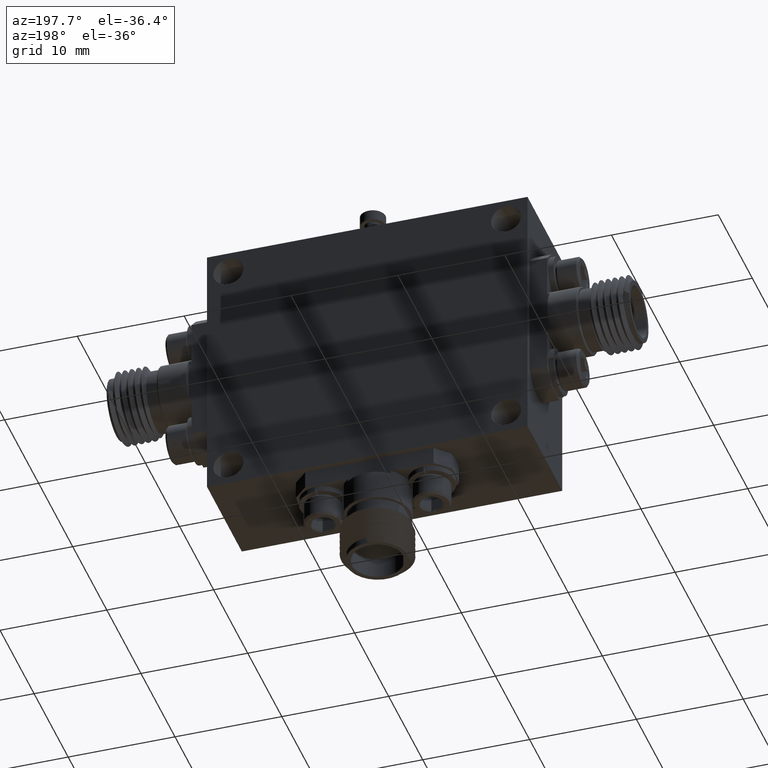
[diagram: clean part render]
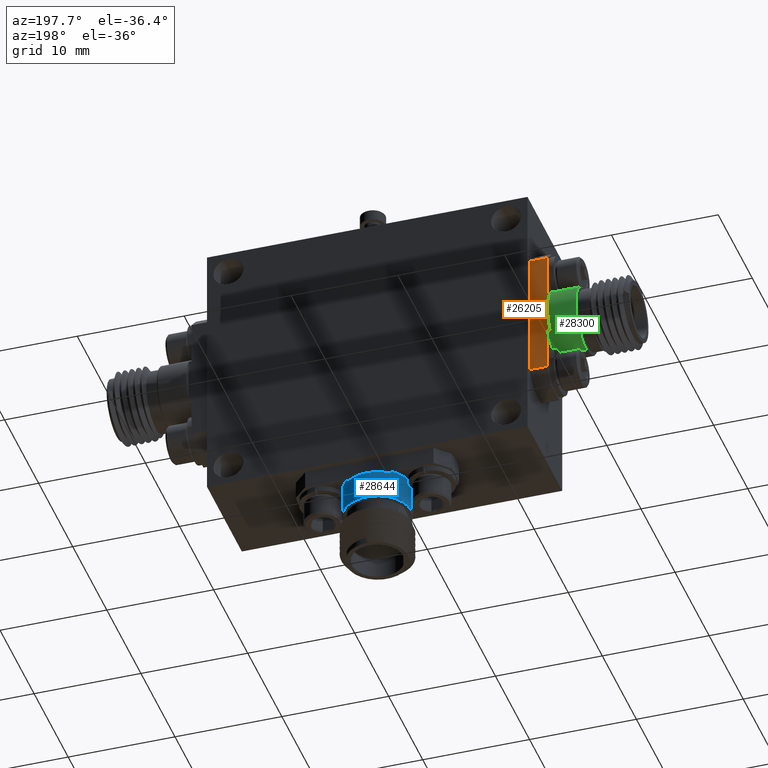
[diagram: same view with three faces highlighted in distinct colors, each labeled with its STEP entity id]
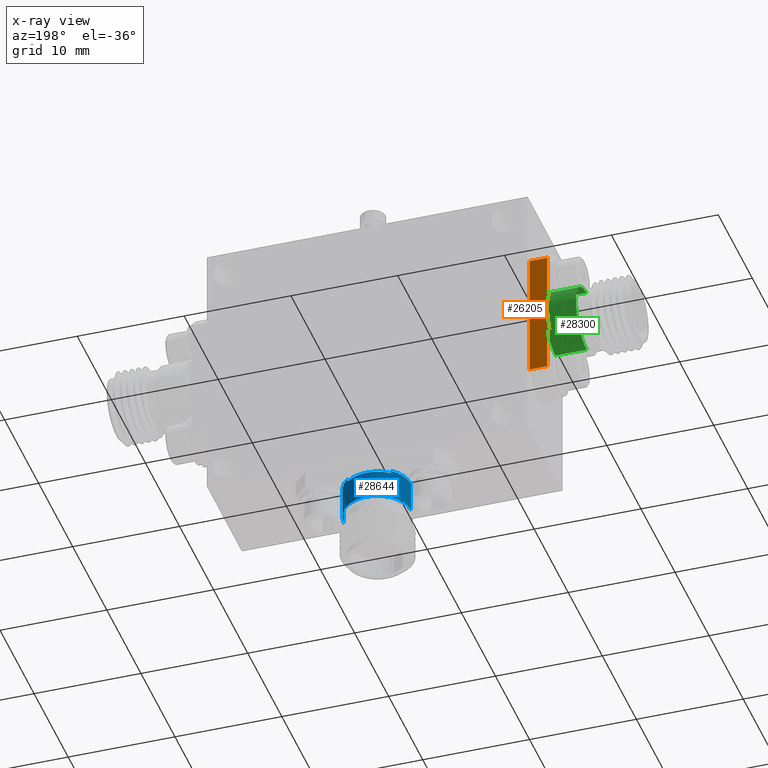
[diagram: x-ray of the same camera — body ghosted, the three highlighted faces saturated]
A machine part, auxiliary view with three faces highlighted in distinct colors.
The next image is the same camera in x-ray (body ghosted, the three faces saturated) — at least one of them is partly hidden behind the body in this view.
Their STEP definitions:

[orange] entity #26205 — the highlighted planar face has unit normal (0, -1, 0).
#391 = CARTESIAN_POINT ( 'NONE',  ( -0.06890135264411048600, 0.8207667375718606900, 0.8853301636433635900 ) ) ;
#2095 = ORIENTED_EDGE ( 'NONE', *, *, #9549, .F. ) ;
#2484 = DIRECTION ( 'NONE',  ( -6.425306481098355200E-017, 1.113111725038923300E-016, 1.000000000000000000 ) ) ;
#4069 = CARTESIAN_POINT ( 'NONE',  ( -0.06890135264411020900, 0.8207667375718606900, 0.7259438405161892100 ) ) ;
#5368 = DIRECTION ( 'NONE',  ( -1.000000000000000000, 7.205886103679894100E-017, 1.577915401140480500E-016 ) ) ;
#6316 = EDGE_CURVE ( 'NONE', #17015, #32960, #31384, .T. ) ;
#7458 = CARTESIAN_POINT ( 'NONE',  ( -0.05890135264411031100, 0.8207667375718608000, 1.042124349095312500 ) ) ;
#7687 = CARTESIAN_POINT ( 'NONE',  ( -0.05890135264411031800, 0.8207667375718606900, 0.7259438405161892100 ) ) ;
#7938 = VECTOR ( 'NONE', #31704, 39.37007874015748100 ) ;
#7959 = CARTESIAN_POINT ( 'NONE',  ( 0.006098647355889683600, 0.8207667375718608000, 1.042124349095312300 ) ) ;
#7998 = CARTESIAN_POINT ( 'NONE',  ( -0.06890135264411020900, 0.8207667375718606900, 0.7259438405161892100 ) ) ;
#8262 = ORIENTED_EDGE ( 'NONE', *, *, #6316, .F. ) ;
#8837 = LINE ( 'NONE', #7458, #23916 ) ;
#9010 = CARTESIAN_POINT ( 'NONE',  ( -0.05890135264411031800, 0.8207667375718606900, 0.8853301636433635900 ) ) ;
#9127 = EDGE_CURVE ( 'NONE', #27603, #9186, #8837, .T. ) ;
#9186 = VERTEX_POINT ( 'NONE', #7959 ) ;
#9334 = VERTEX_POINT ( 'NONE', #30579 ) ;
#9511 = CARTESIAN_POINT ( 'NONE',  ( -0.05890135264411032500, 0.8207667375718606900, 0.5691496550642404200 ) ) ;
#9549 = EDGE_CURVE ( 'NONE', #9334, #17015, #23448, .T. ) ;
#9585 = DIRECTION ( 'NONE',  ( 6.425306481098354000E-017, -1.113111725038923500E-016, -1.000000000000000000 ) ) ;
#10239 = ORIENTED_EDGE ( 'NONE', *, *, #13671, .F. ) ;
#10526 = CARTESIAN_POINT ( 'NONE',  ( 0.006098647355889660200, 0.8207667375718608000, 0.5316388269033713900 ) ) ;
#10949 = EDGE_LOOP ( 'NONE', ( #14933, #32908, #10239, #8262, #2095, #32361, #35754, #16124 ) ) ;
#11012 = VERTEX_POINT ( 'NONE', #9511 ) ;
#11405 = VECTOR ( 'NONE', #5368, 39.37007874015748100 ) ;
#11657 = VERTEX_POINT ( 'NONE', #9010 ) ;
#13671 = EDGE_CURVE ( 'NONE', #32960, #11012, #35167, .T. ) ;
#14105 = PLANE ( 'NONE',  #28135 ) ;
#14933 = ORIENTED_EDGE ( 'NONE', *, *, #15136, .T. ) ;
#15025 = VERTEX_POINT ( 'NONE', #18932 ) ;
#15136 = EDGE_CURVE ( 'NONE', #9186, #15025, #32780, .T. ) ;
#16124 = ORIENTED_EDGE ( 'NONE', *, *, #9127, .T. ) ;
#16238 = CARTESIAN_POINT ( 'NONE',  ( -0.05890135264411031100, 0.8207667375718608000, 1.042124349095312500 ) ) ;
#16773 = DIRECTION ( 'NONE',  ( 2.161765831103969000E-016, -1.000000000000000000, 1.113111725038923500E-016 ) ) ;
#16837 = VECTOR ( 'NONE', #9585, 39.37007874015748100 ) ;
#17015 = VERTEX_POINT ( 'NONE', #35700 ) ;
#17447 = CARTESIAN_POINT ( 'NONE',  ( -0.05890135264411033900, 0.8207667375718608000, 0.5316388269033710500 ) ) ;
#18932 = CARTESIAN_POINT ( 'NONE',  ( 0.006098647355889661100, 0.8207667375718606900, 0.5691496550642407600 ) ) ;
#19056 = DIRECTION ( 'NONE',  ( 6.425306481098354000E-017, -1.113111725038923500E-016, -1.000000000000000000 ) ) ;
#20066 = LINE ( 'NONE', #28844, #11405 ) ;
#23448 = LINE ( 'NONE', #7998, #7938 ) ;
#23916 = VECTOR ( 'NONE', #27951, 39.37007874015748100 ) ;
#24001 = LINE ( 'NONE', #17447, #27633 ) ;
#26159 = DIRECTION ( 'NONE',  ( 1.000000000000000000, -7.205886103679894100E-017, -1.577915401140480500E-016 ) ) ;
#26205 = ADVANCED_FACE ( 'NONE', ( #37482 ), #14105, .F. ) ;
#27181 = CARTESIAN_POINT ( 'NONE',  ( -0.05890135264411033900, 0.8207667375718608000, 0.5316388269033710500 ) ) ;
#27219 = EDGE_CURVE ( 'NONE', #15025, #11012, #20066, .T. ) ;
#27299 = DIRECTION ( 'NONE',  ( 1.000000000000000000, -7.205886103679894100E-017, -1.577915401140480500E-016 ) ) ;
#27372 = EDGE_CURVE ( 'NONE', #9334, #11657, #36024, .T. ) ;
#27603 = VERTEX_POINT ( 'NONE', #16238 ) ;
#27633 = VECTOR ( 'NONE', #28961, 39.37007874015748100 ) ;
#27951 = DIRECTION ( 'NONE',  ( 1.000000000000000000, -7.205886103679894100E-017, -1.577915401140480500E-016 ) ) ;
#28135 = AXIS2_PLACEMENT_3D ( 'NONE', #34256, #16773, #2484 ) ;
#28259 = VECTOR ( 'NONE', #26159, 39.37007874015748100 ) ;
#28844 = CARTESIAN_POINT ( 'NONE',  ( 0.009098647355889772200, 0.8207667375718606900, 0.5691496550642407600 ) ) ;
#28961 = DIRECTION ( 'NONE',  ( 6.425306481098354000E-017, -1.113111725038923500E-016, -1.000000000000000000 ) ) ;
#30579 = CARTESIAN_POINT ( 'NONE',  ( -0.06890135264411048600, 0.8207667375718606900, 0.8853301636433635900 ) ) ;
#31384 = LINE ( 'NONE', #4069, #34554 ) ;
#31704 = DIRECTION ( 'NONE',  ( 6.425306481098354000E-017, -1.113111725038923300E-016, -1.000000000000000000 ) ) ;
#32361 = ORIENTED_EDGE ( 'NONE', *, *, #27372, .T. ) ;
#32780 = LINE ( 'NONE', #10526, #36440 ) ;
#32908 = ORIENTED_EDGE ( 'NONE', *, *, #27219, .T. ) ;
#32960 = VERTEX_POINT ( 'NONE', #7687 ) ;
#34256 = CARTESIAN_POINT ( 'NONE',  ( -0.05890135264411033900, 0.8207667375718608000, 0.5316388269033710500 ) ) ;
#34554 = VECTOR ( 'NONE', #27299, 39.37007874015748100 ) ;
#35167 = LINE ( 'NONE', #27181, #16837 ) ;
#35340 = EDGE_CURVE ( 'NONE', #27603, #11657, #24001, .T. ) ;
#35700 = CARTESIAN_POINT ( 'NONE',  ( -0.06890135264411020900, 0.8207667375718608000, 0.7259438405161892100 ) ) ;
#35754 = ORIENTED_EDGE ( 'NONE', *, *, #35340, .F. ) ;
#36024 = LINE ( 'NONE', #391, #28259 ) ;
#36440 = VECTOR ( 'NONE', #19056, 39.37007874015748100 ) ;
#37482 = FACE_OUTER_BOUND ( 'NONE', #10949, .T. ) ;

[blue] entity #28644 — the highlighted cylindrical surface (edge-blend (fillet) strip) has radius 3.1496 mm, axis along (0, -0, 1).
#207 = ORIENTED_EDGE ( 'NONE', *, *, #22170, .T. ) ;
#1037 = DIRECTION ( 'NONE',  ( 1.110223024625158300E-016, -1.441177220735979100E-016, 1.000000000000000000 ) ) ;
#1235 = VECTOR ( 'NONE', #14458, 39.37007874015748100 ) ;
#1950 = VERTEX_POINT ( 'NONE', #11713 ) ;
#2536 = DIRECTION ( 'NONE',  ( 1.110223024625158500E-016, -1.441177220735979100E-016, 1.000000000000000000 ) ) ;
#2662 = ORIENTED_EDGE ( 'NONE', *, *, #5930, .T. ) ;
#3321 = CARTESIAN_POINT ( 'NONE',  ( 0.7206194867841113600, 0.7266928533145559100, 0.1207986351172002800 ) ) ;
#4065 = AXIS2_PLACEMENT_3D ( 'NONE', #37487, #20374, #29042 ) ;
#4073 = VERTEX_POINT ( 'NONE', #6986 ) ;
#4493 = CARTESIAN_POINT ( 'NONE',  ( 0.4726194867841112500, 0.7266928533145559100, 0.1257986351172003500 ) ) ;
#4566 = EDGE_CURVE ( 'NONE', #25608, #4073, #22314, .T. ) ;
#5004 = DIRECTION ( 'NONE',  ( 1.000000000000000000, 0.0000000000000000000, 0.0000000000000000000 ) ) ;
#5364 = FACE_OUTER_BOUND ( 'NONE', #19007, .T. ) ;
#5930 = EDGE_CURVE ( 'NONE', #14505, #1950, #32351, .T. ) ;
#6910 = CARTESIAN_POINT ( 'NONE',  ( 0.5966194867841112500, 0.7266928533145559100, 0.1207986351172002600 ) ) ;
#6986 = CARTESIAN_POINT ( 'NONE',  ( 0.6763126483476987700, 0.8216928533145559900, 0.2307986351172004500 ) ) ;
#7034 = ORIENTED_EDGE ( 'NONE', *, *, #4566, .T. ) ;
#8086 = CARTESIAN_POINT ( 'NONE',  ( 0.5966194867841115900, 0.7266928533145559100, 0.2407986351171997900 ) ) ;
#9110 = VERTEX_POINT ( 'NONE', #4493 ) ;
#9608 = AXIS2_PLACEMENT_3D ( 'NONE', #34966, #32180, #20686 ) ;
#10405 = CARTESIAN_POINT ( 'NONE',  ( 0.7206194867841113600, 0.7266928533145559100, 0.1257986351172003200 ) ) ;
#11713 = CARTESIAN_POINT ( 'NONE',  ( 0.7206194867841115800, 0.7266928533145559100, 0.2407986351171997900 ) ) ;
#11794 = CARTESIAN_POINT ( 'NONE',  ( 0.6763126483476987700, 0.8216928533145557700, 0.2307986351172004500 ) ) ;
#11949 = EDGE_CURVE ( 'NONE', #25608, #29053, #28328, .T. ) ;
#14449 = AXIS2_PLACEMENT_3D ( 'NONE', #27632, #33258, #19210 ) ;
#14458 = DIRECTION ( 'NONE',  ( 1.110223024625158500E-016, -1.441177220735979100E-016, 1.000000000000000000 ) ) ;
#14505 = VERTEX_POINT ( 'NONE', #25677 ) ;
#14526 = AXIS2_PLACEMENT_3D ( 'NONE', #6910, #1037, #30124 ) ;
#14687 = CARTESIAN_POINT ( 'NONE',  ( 0.5169263252205245100, 0.8216928533145557700, 0.2307986351172001700 ) ) ;
#14931 = LINE ( 'NONE', #11794, #1235 ) ;
#15495 = VECTOR ( 'NONE', #23614, 39.37007874015748100 ) ;
#16174 = LINE ( 'NONE', #20548, #36255 ) ;
#17667 = ORIENTED_EDGE ( 'NONE', *, *, #27317, .F. ) ;
#17747 = LINE ( 'NONE', #3321, #15495 ) ;
#19007 = EDGE_LOOP ( 'NONE', ( #17667, #31910, #207, #36949, #20311, #7034, #26898, #2662 ) ) ;
#19210 = DIRECTION ( 'NONE',  ( 1.000000000000000000, 0.0000000000000000000, 1.376939512935616200E-016 ) ) ;
#19631 = EDGE_CURVE ( 'NONE', #4073, #14505, #14931, .T. ) ;
#19881 = CIRCLE ( 'NONE', #22052, 0.1240000000000000300 ) ;
#20013 = CARTESIAN_POINT ( 'NONE',  ( 0.5169263252205245100, 0.8216928533145557700, 0.2307986351172001700 ) ) ;
#20311 = ORIENTED_EDGE ( 'NONE', *, *, #11949, .F. ) ;
#20374 = DIRECTION ( 'NONE',  ( -1.110223024625158500E-016, 1.441177220735979100E-016, -1.000000000000000000 ) ) ;
#20548 = CARTESIAN_POINT ( 'NONE',  ( 0.4726194867841112000, 0.7266928533145559100, 0.1207986351172002400 ) ) ;
#20686 = DIRECTION ( 'NONE',  ( 1.000000000000000000, 0.0000000000000000000, 0.0000000000000000000 ) ) ;
#21215 = CIRCLE ( 'NONE', #14449, 0.1240000000000000300 ) ;
#22052 = AXIS2_PLACEMENT_3D ( 'NONE', #8086, #34456, #5004 ) ;
#22170 = EDGE_CURVE ( 'NONE', #9110, #27574, #16174, .T. ) ;
#22314 = CIRCLE ( 'NONE', #4065, 0.1240000000000000300 ) ;
#22359 = EDGE_CURVE ( 'NONE', #23032, #9110, #21215, .T. ) ;
#23032 = VERTEX_POINT ( 'NONE', #10405 ) ;
#23614 = DIRECTION ( 'NONE',  ( 1.110223024625158300E-016, -1.441177220735979100E-016, 1.000000000000000000 ) ) ;
#25608 = VERTEX_POINT ( 'NONE', #14687 ) ;
#25677 = CARTESIAN_POINT ( 'NONE',  ( 0.6763126483476987700, 0.8216928533145557700, 0.2407986351172003400 ) ) ;
#26408 = DIRECTION ( 'NONE',  ( 1.110223024625158300E-016, -1.441177220735979100E-016, 1.000000000000000000 ) ) ;
#26898 = ORIENTED_EDGE ( 'NONE', *, *, #19631, .T. ) ;
#26970 = CARTESIAN_POINT ( 'NONE',  ( 0.5169263252205245100, 0.8216928533145557700, 0.2407986351172003400 ) ) ;
#27317 = EDGE_CURVE ( 'NONE', #23032, #1950, #17747, .T. ) ;
#27574 = VERTEX_POINT ( 'NONE', #33848 ) ;
#27632 = CARTESIAN_POINT ( 'NONE',  ( 0.5966194867841112500, 0.7266928533145559100, 0.1257986351172003500 ) ) ;
#28328 = LINE ( 'NONE', #20013, #35616 ) ;
#28644 = ADVANCED_FACE ( 'NONE', ( #5364 ), #32324, .T. ) ;
#29042 = DIRECTION ( 'NONE',  ( 1.000000000000000000, 0.0000000000000000000, 0.0000000000000000000 ) ) ;
#29053 = VERTEX_POINT ( 'NONE', #26970 ) ;
#30124 = DIRECTION ( 'NONE',  ( -1.000000000000000000, 0.0000000000000000000, -1.376939512935615400E-016 ) ) ;
#31910 = ORIENTED_EDGE ( 'NONE', *, *, #22359, .T. ) ;
#32180 = DIRECTION ( 'NONE',  ( -1.110223024625158500E-016, 1.441177220735979100E-016, -1.000000000000000000 ) ) ;
#32324 = CYLINDRICAL_SURFACE ( 'NONE', #14526, 0.1240000000000001000 ) ;
#32351 = CIRCLE ( 'NONE', #9608, 0.1240000000000000300 ) ;
#33258 = DIRECTION ( 'NONE',  ( 1.110223024625158500E-016, -1.441177220735979100E-016, 1.000000000000000000 ) ) ;
#33848 = CARTESIAN_POINT ( 'NONE',  ( 0.4726194867841115300, 0.7266928533145559100, 0.2407986351171997900 ) ) ;
#34456 = DIRECTION ( 'NONE',  ( -1.110223024625158500E-016, 1.441177220735979100E-016, -1.000000000000000000 ) ) ;
#34774 = EDGE_CURVE ( 'NONE', #27574, #29053, #19881, .T. ) ;
#34966 = CARTESIAN_POINT ( 'NONE',  ( 0.5966194867841115900, 0.7266928533145559100, 0.2407986351171997900 ) ) ;
#35616 = VECTOR ( 'NONE', #2536, 39.37007874015748100 ) ;
#36255 = VECTOR ( 'NONE', #26408, 39.37007874015748100 ) ;
#36949 = ORIENTED_EDGE ( 'NONE', *, *, #34774, .T. ) ;
#37487 = CARTESIAN_POINT ( 'NONE',  ( 0.5966194867841115900, 0.7266928533145559100, 0.2307986351172001700 ) ) ;

[green] entity #28300 — the highlighted cylindrical surface (edge-blend (fillet) strip) has radius 3.1496 mm, axis along (1, -0, -0).
#391 = CARTESIAN_POINT ( 'NONE',  ( -0.06890135264411048600, 0.8207667375718606900, 0.8853301636433635900 ) ) ;
#1605 = DIRECTION ( 'NONE',  ( 6.884697564678077200E-017, 0.0000000000000000000, -1.000000000000000000 ) ) ;
#1846 = DIRECTION ( 'NONE',  ( -1.000000000000000000, 7.205886103679894100E-017, 1.577915401140480500E-016 ) ) ;
#4069 = CARTESIAN_POINT ( 'NONE',  ( -0.06890135264411020900, 0.8207667375718606900, 0.7259438405161892100 ) ) ;
#4231 = DIRECTION ( 'NONE',  ( 0.0000000000000000000, 0.0000000000000000000, 1.000000000000000000 ) ) ;
#4530 = CARTESIAN_POINT ( 'NONE',  ( -0.05890135264411085900, 0.7257667375718607200, 0.8056370020797765100 ) ) ;
#4648 = VECTOR ( 'NONE', #9045, 39.37007874015748100 ) ;
#5209 = ORIENTED_EDGE ( 'NONE', *, *, #23056, .T. ) ;
#5353 = ORIENTED_EDGE ( 'NONE', *, *, #17043, .T. ) ;
#6316 = EDGE_CURVE ( 'NONE', #17015, #32960, #31384, .T. ) ;
#6752 = VERTEX_POINT ( 'NONE', #30933 ) ;
#7063 = CARTESIAN_POINT ( 'NONE',  ( -0.05890135264411083800, 0.7257667375718607200, 0.9296370020797764000 ) ) ;
#7620 = DIRECTION ( 'NONE',  ( -1.000000000000000000, 7.205886103679894100E-017, 1.577915401140480500E-016 ) ) ;
#7687 = CARTESIAN_POINT ( 'NONE',  ( -0.05890135264411031800, 0.8207667375718606900, 0.7259438405161892100 ) ) ;
#8553 = VERTEX_POINT ( 'NONE', #25498 ) ;
#9010 = CARTESIAN_POINT ( 'NONE',  ( -0.05890135264411031800, 0.8207667375718606900, 0.8853301636433635900 ) ) ;
#9037 = AXIS2_PLACEMENT_3D ( 'NONE', #15006, #30048, #35766 ) ;
#9045 = DIRECTION ( 'NONE',  ( 1.000000000000000000, -7.205886103679894100E-017, -1.577915401140480300E-016 ) ) ;
#9334 = VERTEX_POINT ( 'NONE', #30579 ) ;
#9496 = CYLINDRICAL_SURFACE ( 'NONE', #16457, 0.1240000000000001000 ) ;
#9779 = ORIENTED_EDGE ( 'NONE', *, *, #32035, .T. ) ;
#10367 = CIRCLE ( 'NONE', #9037, 0.1240000000000001000 ) ;
#10807 = EDGE_CURVE ( 'NONE', #8553, #6752, #35692, .T. ) ;
#11657 = VERTEX_POINT ( 'NONE', #9010 ) ;
#12947 = VERTEX_POINT ( 'NONE', #28399 ) ;
#13088 = CIRCLE ( 'NONE', #17690, 0.1240000000000001000 ) ;
#13229 = CIRCLE ( 'NONE', #14829, 0.1240000000000001000 ) ;
#14829 = AXIS2_PLACEMENT_3D ( 'NONE', #34251, #1846, #16261 ) ;
#15006 = CARTESIAN_POINT ( 'NONE',  ( -0.1739013526441103000, 0.7257667375718607200, 0.8056370020797767300 ) ) ;
#15845 = LINE ( 'NONE', #19878, #16761 ) ;
#16029 = DIRECTION ( 'NONE',  ( -1.000000000000000000, 7.205886103679894100E-017, 1.577915401140480500E-016 ) ) ;
#16148 = CARTESIAN_POINT ( 'NONE',  ( -0.06890135264411047200, 0.7257667375718607200, 0.8056370020797765100 ) ) ;
#16261 = DIRECTION ( 'NONE',  ( 6.884697564678077200E-017, 0.0000000000000000000, -1.000000000000000000 ) ) ;
#16457 = AXIS2_PLACEMENT_3D ( 'NONE', #36397, #27469, #4231 ) ;
#16761 = VECTOR ( 'NONE', #20409, 39.37007874015748100 ) ;
#17015 = VERTEX_POINT ( 'NONE', #35700 ) ;
#17043 = EDGE_CURVE ( 'NONE', #9334, #17015, #13088, .T. ) ;
#17570 = ORIENTED_EDGE ( 'NONE', *, *, #30505, .T. ) ;
#17690 = AXIS2_PLACEMENT_3D ( 'NONE', #16148, #16029, #1605 ) ;
#19878 = CARTESIAN_POINT ( 'NONE',  ( -0.1789013526441103900, 0.7257667375718607200, 0.9296370020797768400 ) ) ;
#20230 = CIRCLE ( 'NONE', #28413, 0.1240000000000001000 ) ;
#20408 = CARTESIAN_POINT ( 'NONE',  ( -0.1789013526441103900, 0.7257667375718607200, 0.6816370020797766200 ) ) ;
#20409 = DIRECTION ( 'NONE',  ( 1.000000000000000000, -7.205886103679894100E-017, -1.577915401140480300E-016 ) ) ;
#23056 = EDGE_CURVE ( 'NONE', #28279, #11657, #20230, .T. ) ;
#23278 = EDGE_LOOP ( 'NONE', ( #35144, #29309, #9779, #5209, #31119, #5353, #34360, #17570 ) ) ;
#24960 = DIRECTION ( 'NONE',  ( 6.884697564678077200E-017, 0.0000000000000000000, -1.000000000000000000 ) ) ;
#25498 = CARTESIAN_POINT ( 'NONE',  ( -0.1739013526441103600, 0.7257667375718607200, 0.6816370020797767300 ) ) ;
#26159 = DIRECTION ( 'NONE',  ( 1.000000000000000000, -7.205886103679894100E-017, -1.577915401140480500E-016 ) ) ;
#27299 = DIRECTION ( 'NONE',  ( 1.000000000000000000, -7.205886103679894100E-017, -1.577915401140480500E-016 ) ) ;
#27372 = EDGE_CURVE ( 'NONE', #9334, #11657, #36024, .T. ) ;
#27469 = DIRECTION ( 'NONE',  ( 1.000000000000000000, -7.205886103679894100E-017, -1.577915401140480300E-016 ) ) ;
#28259 = VECTOR ( 'NONE', #26159, 39.37007874015748100 ) ;
#28279 = VERTEX_POINT ( 'NONE', #7063 ) ;
#28300 = ADVANCED_FACE ( 'NONE', ( #30944 ), #9496, .T. ) ;
#28399 = CARTESIAN_POINT ( 'NONE',  ( -0.1739013526441102700, 0.7257667375718607200, 0.9296370020797767300 ) ) ;
#28413 = AXIS2_PLACEMENT_3D ( 'NONE', #4530, #7620, #24960 ) ;
#29309 = ORIENTED_EDGE ( 'NONE', *, *, #32606, .T. ) ;
#30048 = DIRECTION ( 'NONE',  ( 1.000000000000000000, -7.205886103679894100E-017, -1.577915401140480500E-016 ) ) ;
#30505 = EDGE_CURVE ( 'NONE', #32960, #6752, #13229, .T. ) ;
#30579 = CARTESIAN_POINT ( 'NONE',  ( -0.06890135264411048600, 0.8207667375718606900, 0.8853301636433635900 ) ) ;
#30933 = CARTESIAN_POINT ( 'NONE',  ( -0.05890135264411087300, 0.7257667375718607200, 0.6816370020797765100 ) ) ;
#30944 = FACE_OUTER_BOUND ( 'NONE', #23278, .T. ) ;
#31119 = ORIENTED_EDGE ( 'NONE', *, *, #27372, .F. ) ;
#31384 = LINE ( 'NONE', #4069, #34554 ) ;
#32035 = EDGE_CURVE ( 'NONE', #12947, #28279, #15845, .T. ) ;
#32606 = EDGE_CURVE ( 'NONE', #8553, #12947, #10367, .T. ) ;
#32960 = VERTEX_POINT ( 'NONE', #7687 ) ;
#34251 = CARTESIAN_POINT ( 'NONE',  ( -0.05890135264411085900, 0.7257667375718607200, 0.8056370020797765100 ) ) ;
#34360 = ORIENTED_EDGE ( 'NONE', *, *, #6316, .T. ) ;
#34554 = VECTOR ( 'NONE', #27299, 39.37007874015748100 ) ;
#35144 = ORIENTED_EDGE ( 'NONE', *, *, #10807, .F. ) ;
#35692 = LINE ( 'NONE', #20408, #4648 ) ;
#35700 = CARTESIAN_POINT ( 'NONE',  ( -0.06890135264411020900, 0.8207667375718608000, 0.7259438405161892100 ) ) ;
#35766 = DIRECTION ( 'NONE',  ( 0.0000000000000000000, 0.0000000000000000000, -1.000000000000000000 ) ) ;
#36024 = LINE ( 'NONE', #391, #28259 ) ;
#36397 = CARTESIAN_POINT ( 'NONE',  ( -0.1789013526441103900, 0.7257667375718607200, 0.8056370020797767300 ) ) ;